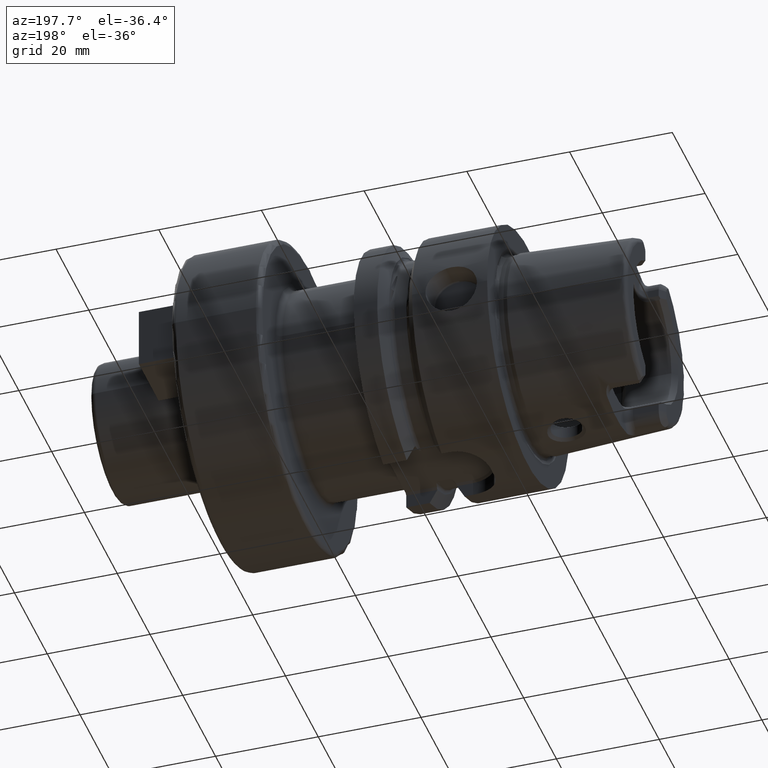
[diagram: clean part render]
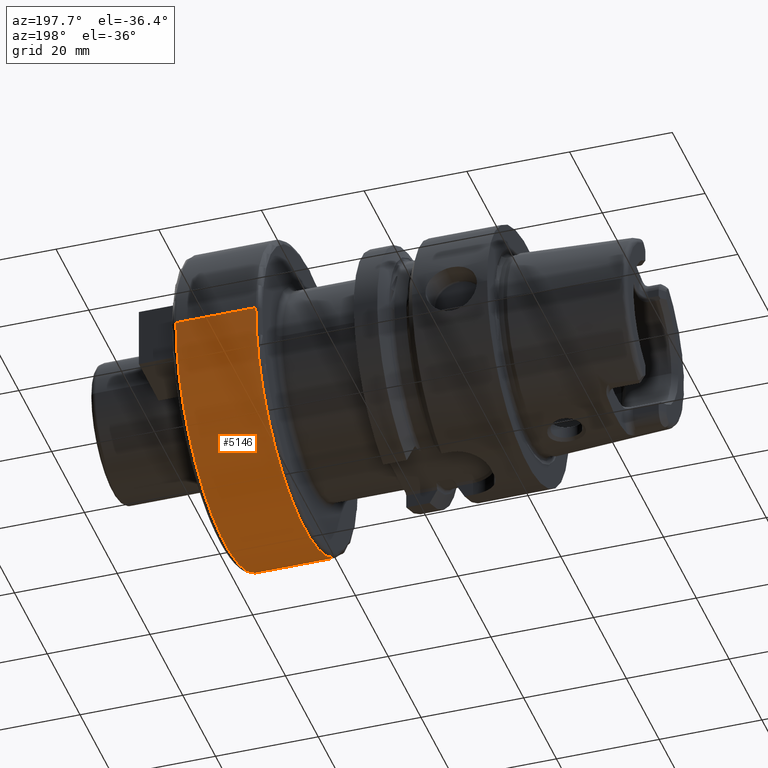
[diagram: same view with one face highlighted and labeled with its STEP entity id]
A machine part, auxiliary view. The second image highlights one B-rep face of the part: STEP entity #5146.
In plain terms, the highlighted cylindrical surface (partial cylindrical patch) has radius 30 mm, axis along (1, 0, 0).
Its self-contained STEP definition (entity closure, byte-faithful):
#1616=CARTESIAN_POINT('',(4.345E1,0.E0,0.E0));
#1617=DIRECTION('',(1.E0,0.E0,0.E0));
#1618=DIRECTION('',(0.E0,-1.E0,0.E0));
#1619=AXIS2_PLACEMENT_3D('',#1616,#1617,#1618);
#1621=DIRECTION('',(-1.E0,0.E0,0.E0));
#1622=VECTOR('',#1621,1.555E1);
#1623=CARTESIAN_POINT('',(5.9E1,-3.E1,1.013626477300E-13));
#1624=LINE('',#1623,#1622);
#1625=CARTESIAN_POINT('',(5.9E1,0.E0,0.E0));
#1626=DIRECTION('',(-1.E0,0.E0,0.E0));
#1627=DIRECTION('',(0.E0,1.E0,0.E0));
#1628=AXIS2_PLACEMENT_3D('',#1625,#1626,#1627);
#1630=DIRECTION('',(-1.E0,0.E0,0.E0));
#1631=VECTOR('',#1630,1.555E1);
#1632=CARTESIAN_POINT('',(5.9E1,3.E1,-1.089424709772E-13));
#1633=LINE('',#1632,#1631);
#3423=CARTESIAN_POINT('',(5.9E1,3.E1,0.E0));
#3424=CARTESIAN_POINT('',(5.9E1,-3.E1,0.E0));
#3425=VERTEX_POINT('',#3423);
#3426=VERTEX_POINT('',#3424);
#3536=CARTESIAN_POINT('',(4.345E1,-3.E1,0.E0));
#3537=CARTESIAN_POINT('',(4.345E1,3.E1,0.E0));
#3538=VERTEX_POINT('',#3536);
#3539=VERTEX_POINT('',#3537);
#5132=CARTESIAN_POINT('',(2.31975E1,0.E0,0.E0));
#5133=DIRECTION('',(1.E0,0.E0,0.E0));
#5134=DIRECTION('',(0.E0,-1.E0,0.E0));
#5135=AXIS2_PLACEMENT_3D('',#5132,#5133,#5134);
#5136=CYLINDRICAL_SURFACE('',#5135,3.E1);
#5137=ORIENTED_EDGE('',*,*,#5122,.F.);
#5139=ORIENTED_EDGE('',*,*,#5138,.F.);
#5141=ORIENTED_EDGE('',*,*,#5140,.F.);
#5143=ORIENTED_EDGE('',*,*,#5142,.T.);
#5144=EDGE_LOOP('',(#5137,#5139,#5141,#5143));
#5145=FACE_OUTER_BOUND('',#5144,.F.);
#5146=ADVANCED_FACE('',(#5145),#5136,.T.);
#1620=CIRCLE('',#1619,3.E1);
#1629=CIRCLE('',#1628,3.E1);
#5122=EDGE_CURVE('',#3538,#3539,#1620,.T.);
#5138=EDGE_CURVE('',#3426,#3538,#1624,.T.);
#5140=EDGE_CURVE('',#3425,#3426,#1629,.T.);
#5142=EDGE_CURVE('',#3425,#3539,#1633,.T.);